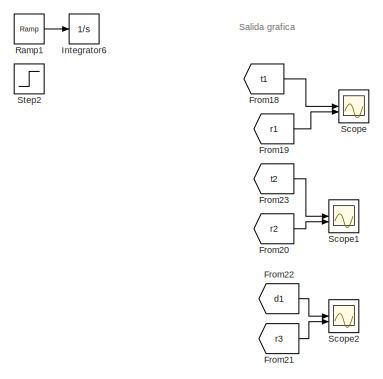
[diagram: root canvas - part 1/3, top left region]
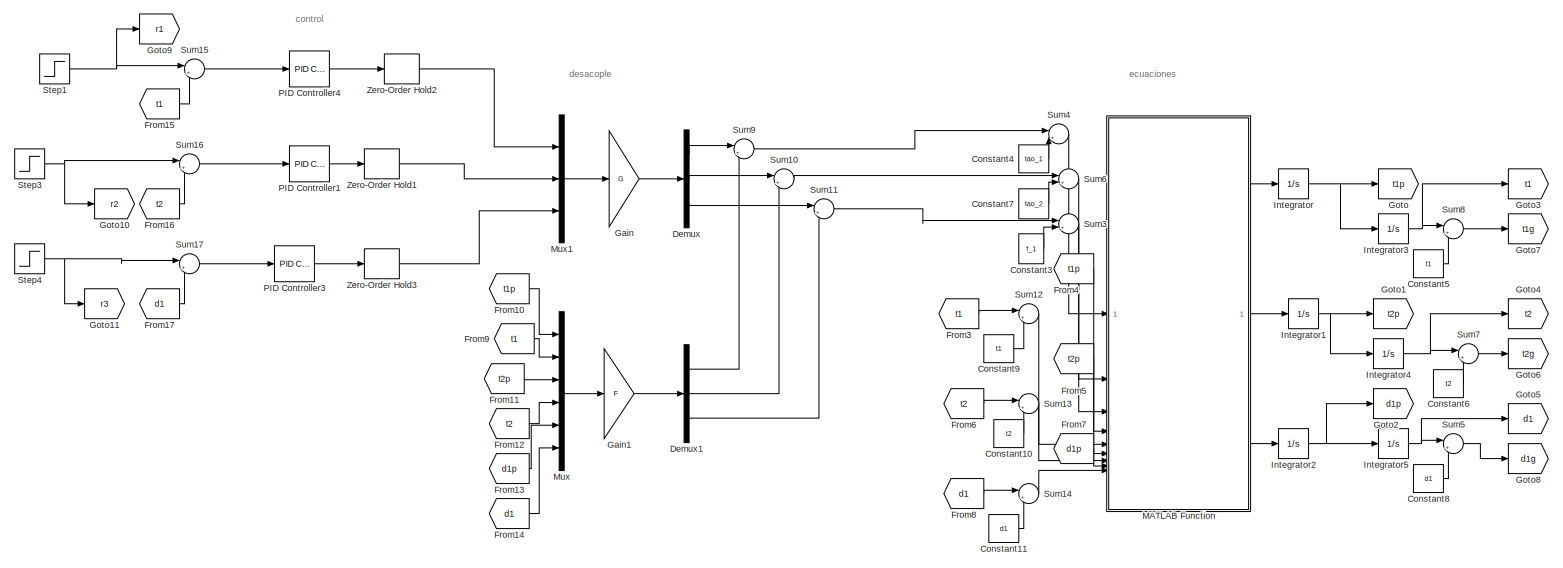
[diagram: root canvas - part 2/3, center side, full height]
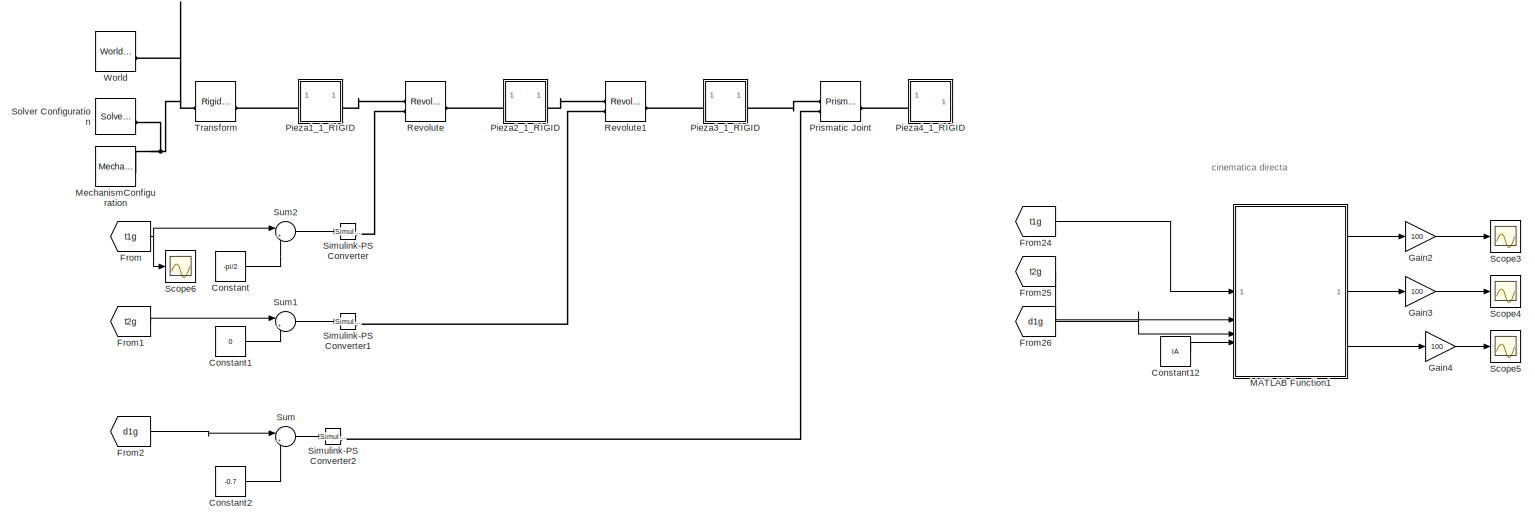
[diagram: root canvas - part 3/3, right side, full height]
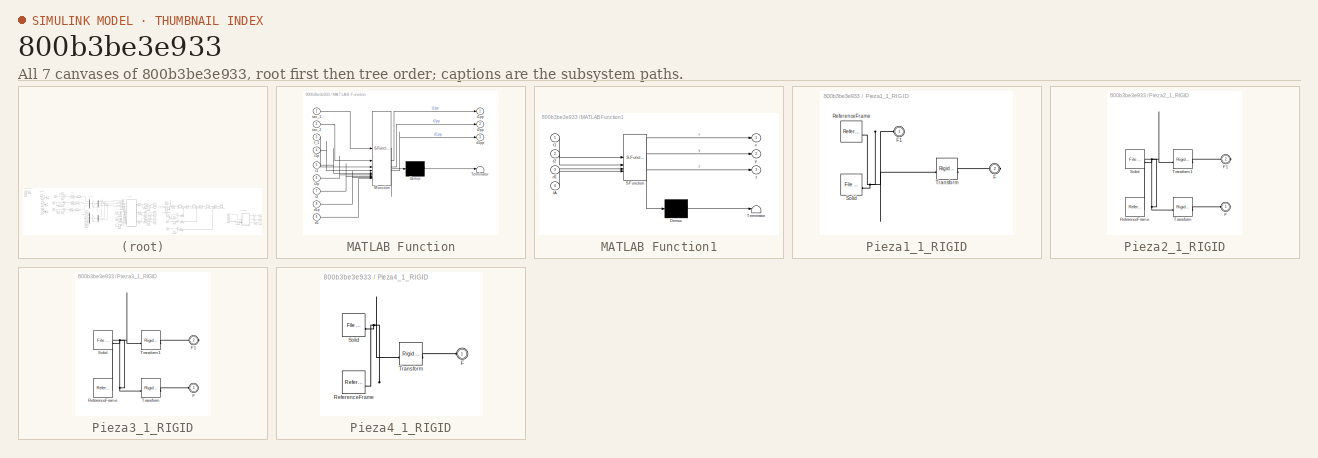
[diagram: thumbnail index - all 7 canvases of the model, root first then tree order]
MODEL slx_800b3be3e933
KIND model
CONFIG SolverName = VariableStepAuto
CONFIG StopTime = 2
WORKSPACE source: external: MATLAB File  (data not in archive)
BLOCK [Constant] Constant
  Value = -pi/2
BLOCK [Constant] Constant1
  Value = 0
BLOCK [Constant] Constant10
  Value = t2
BLOCK [Constant] Constant11
  Value = d1
BLOCK [Constant] Constant12
  Value = lA
BLOCK [Constant] Constant2
  Value = -0.7
BLOCK [Constant] Constant3
  Value = f_1
BLOCK [Constant] Constant4
  Value = tao_1
BLOCK [Constant] Constant5
  Value = t1
BLOCK [Constant] Constant6
  Value = t2
BLOCK [Constant] Constant7
  Value = tao_2
BLOCK [Constant] Constant8
  Value = d1
BLOCK [Constant] Constant9
  Value = t1
BLOCK [Demux] Demux
  Outputs = 3
BLOCK [Demux] Demux1
  Outputs = 3
BLOCK [From] From
  GotoTag = t1g
BLOCK [From] From1
  GotoTag = t2g
BLOCK [From] From10
  GotoTag = t1p
BLOCK [From] From11
  GotoTag = t2p
BLOCK [From] From12
  GotoTag = t2
BLOCK [From] From13
  GotoTag = d1p
BLOCK [From] From14
  GotoTag = d1
BLOCK [From] From15
  GotoTag = t1
BLOCK [From] From16
  GotoTag = t2
BLOCK [From] From17
  GotoTag = d1
BLOCK [From] From18
  GotoTag = t1
BLOCK [From] From19
  GotoTag = r1
BLOCK [From] From2
  GotoTag = d1g
BLOCK [From] From20
  GotoTag = r2
BLOCK [From] From21
  GotoTag = r3
BLOCK [From] From22
  GotoTag = d1
BLOCK [From] From23
  GotoTag = t2
BLOCK [From] From24
  GotoTag = t1g
BLOCK [From] From25
  GotoTag = t2g
BLOCK [From] From26
  GotoTag = d1g
BLOCK [From] From3
  GotoTag = t1
BLOCK [From] From4
  GotoTag = t1p
BLOCK [From] From5
  GotoTag = t2p
BLOCK [From] From6
  GotoTag = t2
BLOCK [From] From7
  GotoTag = d1p
BLOCK [From] From8
  GotoTag = d1
BLOCK [From] From9
  GotoTag = t1
BLOCK [Gain] Gain
  Gain = G
  Multiplication = Matrix(K*u)
BLOCK [Gain] Gain1
  Gain = F
  Multiplication = Matrix(K*u)
BLOCK [Gain] Gain2
  Gain = 100
BLOCK [Gain] Gain3
  Gain = 100
BLOCK [Gain] Gain4
  Gain = 100
BLOCK [Goto] Goto
  GotoTag = t1p
BLOCK [Goto] Goto1
  GotoTag = t2p
BLOCK [Goto] Goto10
  GotoTag = r2
BLOCK [Goto] Goto11
  GotoTag = r3
BLOCK [Goto] Goto2
  GotoTag = d1p
BLOCK [Goto] Goto3
  GotoTag = t1
BLOCK [Goto] Goto4
  GotoTag = t2
BLOCK [Goto] Goto5
  GotoTag = d1
BLOCK [Goto] Goto6
  GotoTag = t2g
BLOCK [Goto] Goto7
  GotoTag = t1g
BLOCK [Goto] Goto8
  GotoTag = d1g
BLOCK [Goto] Goto9
  GotoTag = r1
BLOCK [Integrator] Integrator
BLOCK [Integrator] Integrator1
BLOCK [Integrator] Integrator2
BLOCK [Integrator] Integrator3
BLOCK [Integrator] Integrator4
BLOCK [Integrator] Integrator5
BLOCK [Integrator] Integrator6
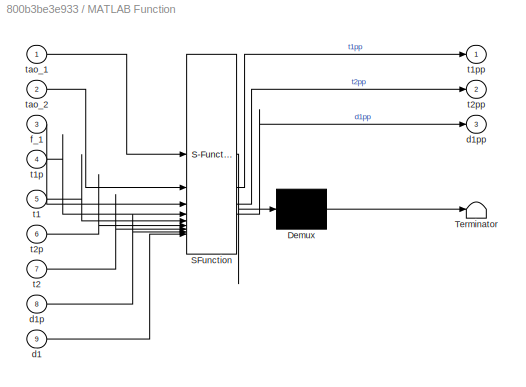
BLOCK [SubSystem] MATLAB Function
  ErrorFcn = Stateflow.Translate.translate
  PermitHierarchicalResolution = ExplicitOnly
  SFBlockType = MATLAB Function
  TreatAsAtomicUnit = on
BLOCK [Demux] MATLAB Function/ Demux 
  Outputs = 1
BLOCK [S-Function] MATLAB Function/ SFunction 
  EnableBusSupport = off
  FunctionName = sf_sfun
  PortCounts = [9 4]
  SFcnIsStateOwnerBlock = off
  SFunctionDeploymentMode = off
  Tag = Stateflow S-Function 2
BLOCK [Terminator] MATLAB Function/ Terminator 
BLOCK [Inport] MATLAB Function/d1
  Port = 9
BLOCK [Inport] MATLAB Function/d1p
  Port = 8
BLOCK [Outport] MATLAB Function/d1pp
  Port = 3
BLOCK [Inport] MATLAB Function/f_1
  Port = 3
BLOCK [Inport] MATLAB Function/t1
  Port = 5
BLOCK [Inport] MATLAB Function/t1p
  Port = 4
BLOCK [Outport] MATLAB Function/t1pp
BLOCK [Inport] MATLAB Function/t2
  Port = 7
BLOCK [Inport] MATLAB Function/t2p
  Port = 6
BLOCK [Outport] MATLAB Function/t2pp
  Port = 2
BLOCK [Inport] MATLAB Function/tao_1
BLOCK [Inport] MATLAB Function/tao_2
  Port = 2
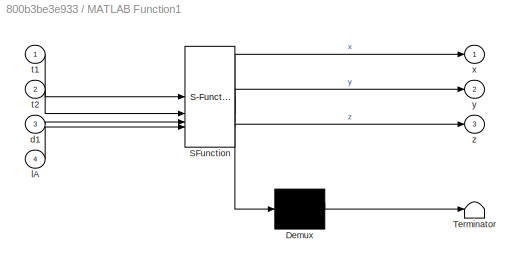
BLOCK [SubSystem] MATLAB Function1
  ErrorFcn = Stateflow.Translate.translate
  PermitHierarchicalResolution = ExplicitOnly
  SFBlockType = MATLAB Function
  TreatAsAtomicUnit = on
BLOCK [Demux] MATLAB Function1/ Demux 
  Outputs = 1
BLOCK [S-Function] MATLAB Function1/ SFunction 
  EnableBusSupport = off
  FunctionName = sf_sfun
  PortCounts = [4 4]
  SFcnIsStateOwnerBlock = off
  SFunctionDeploymentMode = off
  Tag = Stateflow S-Function 5
BLOCK [Terminator] MATLAB Function1/ Terminator 
BLOCK [Inport] MATLAB Function1/d1
  Port = 3
BLOCK [Inport] MATLAB Function1/lA
  Port = 4
BLOCK [Inport] MATLAB Function1/t1
BLOCK [Inport] MATLAB Function1/t2
  Port = 2
BLOCK [Outport] MATLAB Function1/x
BLOCK [Outport] MATLAB Function1/y
  Port = 2
BLOCK [Outport] MATLAB Function1/z
  Port = 3
BLOCK [Reference] MechanismConfiguration  REF=sm_lib/Utilities/Mechanism
Configuration
  SourceBlock = sm_lib/Utilities/Mechanism\nConfiguration
  SourceType = Mechanism\nConfiguration
BLOCK [Mux] Mux
  DisplayOption = bar
  Inputs = 6
BLOCK [Mux] Mux1
  DisplayOption = bar
  Inputs = 3
BLOCK [Reference] PID Controller1  REF=slpidlib/PID Controller
  LibrarySourceBlock = simulink/Continuous/PID Controller
  SourceBlock = slpidlib/PID Controller
  SourceType = PID 1dof
BLOCK [Reference] PID Controller3  REF=slpidlib/PID Controller
  LibrarySourceBlock = simulink/Continuous/PID Controller
  SourceBlock = slpidlib/PID Controller
  SourceType = PID 1dof
BLOCK [Reference] PID Controller4  REF=slpidlib/PID Controller
  LibrarySourceBlock = simulink/Continuous/PID Controller
  SourceBlock = slpidlib/PID Controller
  SourceType = PID 1dof
BLOCK [SubSystem] Pieza1_1_RIGID
BLOCK [PMIOPort] Pieza1_1_RIGID/F
  Port = 2
  Side = Right
BLOCK [PMIOPort] Pieza1_1_RIGID/F1
  Side = Left
BLOCK [Reference] Pieza1_1_RIGID/ReferenceFrame  REF=sm_lib/Frames and
Transforms/Reference
Frame
  SourceBlock = sm_lib/Frames and\nTransforms/Reference\nFrame
  SourceType = Reference\nFrame
BLOCK [Reference] Pieza1_1_RIGID/Solid  REF=sm_lib/Body Elements/File Solid
  SourceBlock = sm_lib/Body Elements/File Solid
  SourceType = File Solid
BLOCK [Reference] Pieza1_1_RIGID/Transform  REF=sm_lib/Frames and
Transforms/Rigid
Transform
  SourceBlock = sm_lib/Frames and\nTransforms/Rigid\nTransform
  SourceType = Rigid\nTransform
BLOCK [SubSystem] Pieza2_1_RIGID
BLOCK [PMIOPort] Pieza2_1_RIGID/F
  Side = Left
BLOCK [PMIOPort] Pieza2_1_RIGID/F1
  Port = 2
  Side = Right
BLOCK [Reference] Pieza2_1_RIGID/ReferenceFrame  REF=sm_lib/Frames and
Transforms/Reference
Frame
  SourceBlock = sm_lib/Frames and\nTransforms/Reference\nFrame
  SourceType = Reference\nFrame
BLOCK [Reference] Pieza2_1_RIGID/Solid  REF=sm_lib/Body Elements/File Solid
  SourceBlock = sm_lib/Body Elements/File Solid
  SourceType = File Solid
BLOCK [Reference] Pieza2_1_RIGID/Transform  REF=sm_lib/Frames and
Transforms/Rigid
Transform
  SourceBlock = sm_lib/Frames and\nTransforms/Rigid\nTransform
  SourceType = Rigid\nTransform
BLOCK [Reference] Pieza2_1_RIGID/Transform1  REF=sm_lib/Frames and
Transforms/Rigid
Transform
  SourceBlock = sm_lib/Frames and\nTransforms/Rigid\nTransform
  SourceType = Rigid\nTransform
BLOCK [SubSystem] Pieza3_1_RIGID
BLOCK [PMIOPort] Pieza3_1_RIGID/F
  Side = Left
BLOCK [PMIOPort] Pieza3_1_RIGID/F1
  Port = 2
  Side = Right
BLOCK [Reference] Pieza3_1_RIGID/ReferenceFrame  REF=sm_lib/Frames and
Transforms/Reference
Frame
  SourceBlock = sm_lib/Frames and\nTransforms/Reference\nFrame
  SourceType = Reference\nFrame
BLOCK [Reference] Pieza3_1_RIGID/Solid  REF=sm_lib/Body Elements/File Solid
  SourceBlock = sm_lib/Body Elements/File Solid
  SourceType = File Solid
BLOCK [Reference] Pieza3_1_RIGID/Transform  REF=sm_lib/Frames and
Transforms/Rigid
Transform
  SourceBlock = sm_lib/Frames and\nTransforms/Rigid\nTransform
  SourceType = Rigid\nTransform
BLOCK [Reference] Pieza3_1_RIGID/Transform1  REF=sm_lib/Frames and
Transforms/Rigid
Transform
  SourceBlock = sm_lib/Frames and\nTransforms/Rigid\nTransform
  SourceType = Rigid\nTransform
BLOCK [SubSystem] Pieza4_1_RIGID
BLOCK [PMIOPort] Pieza4_1_RIGID/F
  Side = Left
BLOCK [Reference] Pieza4_1_RIGID/ReferenceFrame  REF=sm_lib/Frames and
Transforms/Reference
Frame
  SourceBlock = sm_lib/Frames and\nTransforms/Reference\nFrame
  SourceType = Reference\nFrame
BLOCK [Reference] Pieza4_1_RIGID/Solid  REF=sm_lib/Body Elements/File Solid
  SourceBlock = sm_lib/Body Elements/File Solid
  SourceType = File Solid
BLOCK [Reference] Pieza4_1_RIGID/Transform  REF=sm_lib/Frames and
Transforms/Rigid
Transform
  SourceBlock = sm_lib/Frames and\nTransforms/Rigid\nTransform
  SourceType = Rigid\nTransform
BLOCK [Reference] Prismatic Joint  REF=sm_lib/Joints/Prismatic
Joint
  SourceBlock = sm_lib/Joints/Prismatic\nJoint
  SourceType = Prismatic\nJoint
BLOCK [Reference] Ramp1  REF=simulink/Sources/Ramp
  SourceBlock = simulink/Sources/Ramp
  SourceType = Ramp
BLOCK [Reference] Revolute  REF=sm_lib/Joints/Revolute Joint
  SourceBlock = sm_lib/Joints/Revolute Joint
  SourceType = Revolute Joint
BLOCK [Reference] Revolute1  REF=sm_lib/Joints/Revolute Joint
  SourceBlock = sm_lib/Joints/Revolute Joint
  SourceType = Revolute Joint
BLOCK [Scope] Scope
  ActiveDisplayYMaximum = 1.80516429232947E-5
  ActiveDisplayYMinimum = -2.0057381025882996E-6
  Floating = off
  GraphicalSettings = {"Style":{"BackgroundColor":[0.12941176470588237,0.12941176470588237,0.12941176470588237],"AxesColor":[0.07058823529411765,0.07058823529411765,0.07058823529411765],"LabelsColor":[0.8509803921568627,0.8509803921568627,0.8509803921568627],"PreserveColors":false,"Visible":[true,true],"LineStyle":["-","-"],"LineWidth":[1.5,1.5],"BarWidth":[0.9,0.9],"LineColor":["auto","auto"],"LineFaceAlpha":[1,1],"Li...<+2142ch>
  MultipleDisplayCache = [{"MaxYLimMag":1.80516429232947E-5,"MaxYLimReal":1.80516429232947E-5,"MinYLimMag":0,"MinYLimReal":-2.0057381025882996E-6,"PlotAsMagnitudePhase":false,"ShowGrid":true,"ShowLegend":false,"Title":"%<SignalLabel>","YLabel":""}]
  NumInputPorts = 2
  ScopeFrameLocation = window
  WasSavedAsWebScope = on
  WindowPosition = [665.000000,82.000000,560.000000,420.000000,]
BLOCK [Scope] Scope1
  ActiveDisplayYMaximum = 0.00011250002203052431
  ActiveDisplayYMinimum = -1.2500002447836031E-5
  DataLoggingVariableName = ScopeData1
  Floating = off
  GraphicalSettings = {"Style":{"BackgroundColor":[0.12941176470588237,0.12941176470588237,0.12941176470588237],"AxesColor":[0.07058823529411765,0.07058823529411765,0.07058823529411765],"LabelsColor":[0.8509803921568627,0.8509803921568627,0.8509803921568627],"PreserveColors":false,"Visible":[true,true],"LineStyle":["-","-"],"LineWidth":[1.5,1.5],"BarWidth":[0.9,0.9],"LineColor":["auto","auto"],"LineFaceAlpha":[1,1],"Li...<+2015ch>
  MultipleDisplayCache = [{"MaxYLimMag":0.00011250002203052431,"MaxYLimReal":0.00011250002203052431,"MinYLimMag":0,"MinYLimReal":-1.2500002447836031E-5,"PlotAsMagnitudePhase":false,"ShowGrid":true,"ShowLegend":false,"Title":"%<SignalLabel>","YLabel":""}]
  NumInputPorts = 2
  ScopeFrameLocation = window
  WasSavedAsWebScope = on
  WindowPosition = [488.000000,270.000000,560.000000,420.000000,]
BLOCK [Scope] Scope2
  ActiveDisplayYMaximum = 1.8033085504843022E-5
  ActiveDisplayYMinimum = -2.0116829282225588E-6
  DataLoggingVariableName = ScopeData2
  Floating = off
  GraphicalSettings = {"Style":{"BackgroundColor":[0.12941176470588237,0.12941176470588237,0.12941176470588237],"AxesColor":[0.07058823529411765,0.07058823529411765,0.07058823529411765],"LabelsColor":[0.8509803921568627,0.8509803921568627,0.8509803921568627],"PreserveColors":false,"Visible":[true,true],"LineStyle":["-","-"],"LineWidth":[1.5,1.5],"BarWidth":[0.9,0.9],"LineColor":["auto","auto"],"LineFaceAlpha":[1,1],"Li...<+2141ch>
  MultipleDisplayCache = [{"MaxYLimMag":1.8033085504843022E-5,"MaxYLimReal":1.8033085504843022E-5,"MinYLimMag":0,"MinYLimReal":-2.0116829282225588E-6,"PlotAsMagnitudePhase":false,"ShowGrid":true,"ShowLegend":false,"Title":"%<SignalLabel>","YLabel":""}]
  NumInputPorts = 2
  ScopeFrameLocation = window
  WasSavedAsWebScope = on
  WindowPosition = [488.000000,270.000000,560.000000,420.000000,]
BLOCK [Scope] Scope3
  ActiveDisplayYMaximum = 14.00133884150104
  ActiveDisplayYMinimum = 13.99985123983322
  DataLoggingVariableName = ScopeData3
  Floating = off
  GraphicalSettings = {"Style":{"BackgroundColor":[0.12941176470588237,0.12941176470588237,0.12941176470588237],"AxesColor":[0.07058823529411765,0.07058823529411765,0.07058823529411765],"LabelsColor":[0.8509803921568627,0.8509803921568627,0.8509803921568627],"PreserveColors":false,"Visible":[true],"LineStyle":["-"],"LineWidth":[1.5],"BarWidth":[0.9],"LineColor":["auto"],"LineFaceAlpha":[1],"LineEdgeAlpha":[1],"Marker":...<+2026ch>
  MultipleDisplayCache = [{"MaxYLimMag":14.00133884150104,"MaxYLimReal":14.00133884150104,"MinYLimMag":13.99985123983322,"MinYLimReal":13.99985123983322,"PlotAsMagnitudePhase":false,"ShowGrid":true,"ShowLegend":false,"Title":"%<SignalLabel>","YLabel":""}]
  NumInputPorts = 1
  ScopeFrameLocation = window
  WasSavedAsWebScope = on
  WindowPosition = [1.000000,1.000000,1366.000000,745.000000,]
BLOCK [Scope] Scope4
  ActiveDisplayYMaximum = 27.001389289157011
  ActiveDisplayYMinimum = 26.999845634538111
  DataLoggingVariableName = ScopeData4
  Floating = off
  GraphicalSettings = {"Style":{"BackgroundColor":[0.12941176470588237,0.12941176470588237,0.12941176470588237],"AxesColor":[0.07058823529411765,0.07058823529411765,0.07058823529411765],"LabelsColor":[0.8509803921568627,0.8509803921568627,0.8509803921568627],"PreserveColors":false,"Visible":[true],"LineStyle":["-"],"LineWidth":[1.5],"BarWidth":[0.9],"LineColor":["auto"],"LineFaceAlpha":[1],"LineEdgeAlpha":[1],"Marker":...<+2022ch>
  MultipleDisplayCache = [{"MaxYLimMag":27.001389289157011,"MaxYLimReal":27.001389289157011,"MinYLimMag":26.999845634538111,"MinYLimReal":26.999845634538111,"PlotAsMagnitudePhase":false,"ShowGrid":true,"ShowLegend":false,"Title":"%<SignalLabel>","YLabel":""}]
  NumInputPorts = 1
  ScopeFrameLocation = window
  WasSavedAsWebScope = on
  WindowPosition = [488.000000,270.000000,560.000000,420.000000,]
BLOCK [Scope] Scope5
  ActiveDisplayYMaximum = 98.0000413264987
  ActiveDisplayYMinimum = 97.999628061511757
  DataLoggingVariableName = ScopeData5
  Floating = off
  GraphicalSettings = {"Style":{"BackgroundColor":[0.12941176470588237,0.12941176470588237,0.12941176470588237],"AxesColor":[0.07058823529411765,0.07058823529411765,0.07058823529411765],"LabelsColor":[0.8509803921568627,0.8509803921568627,0.8509803921568627],"PreserveColors":false,"Visible":[true],"LineStyle":["-"],"LineWidth":[1.5],"BarWidth":[0.9],"LineColor":["auto"],"LineFaceAlpha":[1],"LineEdgeAlpha":[1],"Marker":...<+2022ch>
  MultipleDisplayCache = [{"MaxYLimMag":98.0000413264987,"MaxYLimReal":98.0000413264987,"MinYLimMag":97.999628061511757,"MinYLimReal":97.999628061511757,"PlotAsMagnitudePhase":false,"ShowGrid":true,"ShowLegend":false,"Title":"%<SignalLabel>","YLabel":""}]
  NumInputPorts = 1
  ScopeFrameLocation = window
  WasSavedAsWebScope = on
  WindowPosition = [488.000000,270.000000,560.000000,420.000000,]
BLOCK [Scope] Scope6
  ActiveDisplayYMaximum = 1
  ActiveDisplayYMinimum = -1
  DataLoggingVariableName = ScopeData6
  Floating = off
  GraphicalSettings = {"Style":{"BackgroundColor":[0.12941176470588237,0.12941176470588237,0.12941176470588237],"AxesColor":[0.07058823529411765,0.07058823529411765,0.07058823529411765],"LabelsColor":[0.8509803921568627,0.8509803921568627,0.8509803921568627],"PreserveColors":false,"Visible":[true],"LineStyle":["-"],"LineWidth":[1.5],"BarWidth":[0.9],"LineColor":["auto"],"LineFaceAlpha":[1],"LineEdgeAlpha":[1],"Marker":...<+1896ch>
  MultipleDisplayCache = [{"MaxYLimMag":1,"MaxYLimReal":1,"MinYLimMag":0,"MinYLimReal":-1,"PlotAsMagnitudePhase":false,"ShowGrid":true,"ShowLegend":false,"Title":"%<SignalLabel>","YLabel":""}]
  NumInputPorts = 1
  ScopeFrameLocation = window
  WasSavedAsWebScope = on
  WindowPosition = [403.000000,174.000000,560.000000,420.000000,]
BLOCK [Reference] Simulink-PS Converter  REF=nesl_utility/Simulink-PS
Converter
  SourceBlock = nesl_utility/Simulink-PS\nConverter
  SourceType = Simulink-PS\nConverter
BLOCK [Reference] Simulink-PS Converter1  REF=nesl_utility/Simulink-PS
Converter
  SourceBlock = nesl_utility/Simulink-PS\nConverter
  SourceType = Simulink-PS\nConverter
BLOCK [Reference] Simulink-PS Converter2  REF=nesl_utility/Simulink-PS
Converter
  SourceBlock = nesl_utility/Simulink-PS\nConverter
  SourceType = Simulink-PS\nConverter
BLOCK [Reference] Solver Configuration  REF=nesl_utility/Solver
Configuration
  SourceBlock = nesl_utility/Solver\nConfiguration
  SourceType = Solver\nConfiguration
BLOCK [Step] Step1
  FinalValue = 0.00001
  SampleTime = 0
BLOCK [Step] Step2
  FinalValue = 0.00001
  SampleTime = 0
BLOCK [Step] Step3
  FinalValue = 0.00001
  SampleTime = 0
BLOCK [Step] Step4
  FinalValue = 0.00001
  SampleTime = 0
BLOCK [Sum] Sum
  Inputs = |++
BLOCK [Sum] Sum1
  Inputs = |++
BLOCK [Sum] Sum10
  Inputs = |+-
BLOCK [Sum] Sum11
  Inputs = |+-
BLOCK [Sum] Sum12
  Inputs = |++
BLOCK [Sum] Sum13
  Inputs = |++
BLOCK [Sum] Sum14
  Inputs = |++
BLOCK [Sum] Sum15
  Inputs = |+-
BLOCK [Sum] Sum16
  Inputs = |+-
BLOCK [Sum] Sum17
  Inputs = |+-
BLOCK [Sum] Sum2
  Inputs = |++
BLOCK [Sum] Sum3
  Inputs = |++
BLOCK [Sum] Sum4
  Inputs = |++
BLOCK [Sum] Sum5
  Inputs = |++
BLOCK [Sum] Sum6
  Inputs = |++
BLOCK [Sum] Sum7
  Inputs = |++
BLOCK [Sum] Sum8
  Inputs = |++
BLOCK [Sum] Sum9
  Inputs = |+-
BLOCK [Reference] Transform  REF=sm_lib/Frames and
Transforms/Rigid
Transform
  SourceBlock = sm_lib/Frames and\nTransforms/Rigid\nTransform
  SourceType = Rigid\nTransform
BLOCK [Reference] World  REF=sm_lib/Frames and
Transforms/World Frame
  SourceBlock = sm_lib/Frames and\nTransforms/World Frame
  SourceType = World Frame
BLOCK [ZeroOrderHold] Zero-Order Hold1
  SampleTime = 0.0001
BLOCK [ZeroOrderHold] Zero-Order Hold2
  SampleTime = 0.0001
BLOCK [ZeroOrderHold] Zero-Order Hold3
  SampleTime = 0.0001
ANNOTATION (root): Salida grafica
ANNOTATION (root): cinematica directa
ANNOTATION (root): control
ANNOTATION (root): desacople
ANNOTATION (root): ecuaciones
LINE Constant10:1 -> Sum13:2
LINE Constant11:1 -> Sum14:2
LINE Constant12:1 -> MATLAB Function1:4
LINE Constant1:1 -> Sum1:2
LINE Constant2:1 -> Sum:2
LINE Constant3:1 -> Sum3:2
LINE Constant4:1 -> Sum4:2
LINE Constant5:1 -> Sum8:2
LINE Constant6:1 -> Sum7:2
LINE Constant7:1 -> Sum6:2
LINE Constant8:1 -> Sum5:2
LINE Constant9:1 -> Sum12:2
LINE Constant:1 -> Sum2:2
LINE Demux1:1 -> Sum9:2
LINE Demux1:2 -> Sum10:2
LINE Demux1:3 -> Sum11:2
LINE Demux:1 -> Sum9:1
LINE Demux:2 -> Sum10:1
LINE Demux:3 -> Sum11:1
LINE From10:1 -> Mux:1
LINE From11:1 -> Mux:3
LINE From12:1 -> Mux:4
LINE From13:1 -> Mux:5
LINE From14:1 -> Mux:6
LINE From15:1 -> Sum15:2
LINE From16:1 -> Sum16:2
LINE From17:1 -> Sum17:2
LINE From18:1 -> Scope:1
LINE From19:1 -> Scope:2
LINE From1:1 -> Sum1:1
LINE From20:1 -> Scope1:2
LINE From21:1 -> Scope2:2
LINE From22:1 -> Scope2:1
LINE From23:1 -> Scope1:1
LINE From24:1 -> MATLAB Function1:1
LINE From25:1 -> MATLAB Function1:2
LINE From26:1 -> MATLAB Function1:3
LINE From2:1 -> Sum:1
LINE From3:1 -> Sum12:1
LINE From4:1 -> MATLAB Function:4
LINE From5:1 -> MATLAB Function:6
LINE From6:1 -> Sum13:1
LINE From7:1 -> MATLAB Function:8
LINE From8:1 -> Sum14:1
LINE From9:1 -> Mux:2
NET From:1 -> Scope6:1, Sum2:1
LINE Gain1:1 -> Demux1:1
LINE Gain2:1 -> Scope3:1
LINE Gain3:1 -> Scope4:1
LINE Gain4:1 -> Scope5:1
LINE Gain:1 -> Demux:1
NET Integrator1:1 -> Goto1:1, Integrator4:1
NET Integrator2:1 -> Goto2:1, Integrator5:1
NET Integrator3:1 -> Goto3:1, Sum8:1
NET Integrator4:1 -> Goto4:1, Sum7:1
NET Integrator5:1 -> Goto5:1, Sum5:1
NET Integrator:1 -> Goto:1, Integrator3:1
LINE MATLAB Function1:1 -> Gain2:1
LINE MATLAB Function1:2 -> Gain3:1
LINE MATLAB Function1:3 -> Gain4:1
LINE MATLAB Function:1 -> Integrator:1
LINE MATLAB Function:2 -> Integrator1:1
LINE MATLAB Function:3 -> Integrator2:1
LINE Mux1:1 -> Gain:1
LINE Mux:1 -> Gain1:1
LINE PID Controller1:1 -> Zero-Order Hold1:1
LINE PID Controller3:1 -> Zero-Order Hold3:1
LINE PID Controller4:1 -> Zero-Order Hold2:1
LINE Ramp1:1 -> Integrator6:1
NET Step1:1 -> Goto9:1, Sum15:1
NET Step3:1 -> Goto10:1, Sum16:1
NET Step4:1 -> Goto11:1, Sum17:1
LINE Sum10:1 -> Sum6:1
LINE Sum11:1 -> Sum3:1
LINE Sum12:1 -> MATLAB Function:5
LINE Sum13:1 -> MATLAB Function:7
LINE Sum14:1 -> MATLAB Function:9
LINE Sum15:1 -> PID Controller4:1
LINE Sum16:1 -> PID Controller1:1
LINE Sum17:1 -> PID Controller3:1
LINE Sum1:1 -> Simulink-PS Converter1:1
LINE Sum2:1 -> Simulink-PS Converter:1
LINE Sum3:1 -> MATLAB Function:3
LINE Sum4:1 -> MATLAB Function:1
LINE Sum5:1 -> Goto8:1
LINE Sum6:1 -> MATLAB Function:2
LINE Sum7:1 -> Goto6:1
LINE Sum8:1 -> Goto7:1
LINE Sum9:1 -> Sum4:1
LINE Sum:1 -> Simulink-PS Converter2:1
LINE Zero-Order Hold1:1 -> Mux1:2
LINE Zero-Order Hold2:1 -> Mux1:1
LINE Zero-Order Hold3:1 -> Mux1:3
PNET net1: MechanismConfiguration:RConn1 -- Solver Configuration:RConn1 -- Transform:LConn1 -- World:RConn1
PNET net2: Pieza1_1_RIGID/F1:RConn1 -- Pieza1_1_RIGID/ReferenceFrame:RConn1 -- Pieza1_1_RIGID/Solid:RConn1 -- Pieza1_1_RIGID/Transform:LConn1
PLINE Pieza1_1_RIGID/F:RConn1 -- Pieza1_1_RIGID/Transform:RConn1
PLINE Pieza1_1_RIGID:LConn1 -- Transform:RConn1
PLINE Pieza1_1_RIGID:RConn1 -- Revolute:LConn1
PLINE Pieza2_1_RIGID/F1:RConn1 -- Pieza2_1_RIGID/Transform1:RConn1
PLINE Pieza2_1_RIGID/F:RConn1 -- Pieza2_1_RIGID/Transform:RConn1
PNET net3: Pieza2_1_RIGID/ReferenceFrame:RConn1 -- Pieza2_1_RIGID/Solid:RConn1 -- Pieza2_1_RIGID/Transform1:LConn1 -- Pieza2_1_RIGID/Transform:LConn1
PLINE Pieza2_1_RIGID:LConn1 -- Revolute:RConn1
PLINE Pieza2_1_RIGID:RConn1 -- Revolute1:LConn1
PLINE Pieza3_1_RIGID/F1:RConn1 -- Pieza3_1_RIGID/Transform1:RConn1
PLINE Pieza3_1_RIGID/F:RConn1 -- Pieza3_1_RIGID/Transform:RConn1
PNET net4: Pieza3_1_RIGID/ReferenceFrame:RConn1 -- Pieza3_1_RIGID/Solid:RConn1 -- Pieza3_1_RIGID/Transform1:LConn1 -- Pieza3_1_RIGID/Transform:LConn1
PLINE Pieza3_1_RIGID:LConn1 -- Revolute1:RConn1
PLINE Pieza3_1_RIGID:RConn1 -- Prismatic Joint:LConn1
PLINE Pieza4_1_RIGID/F:RConn1 -- Pieza4_1_RIGID/Transform:RConn1
PNET net5: Pieza4_1_RIGID/ReferenceFrame:RConn1 -- Pieza4_1_RIGID/Solid:RConn1 -- Pieza4_1_RIGID/Transform:LConn1
PLINE Pieza4_1_RIGID:LConn1 -- Prismatic Joint:RConn1
PLINE Prismatic Joint:LConn2 -- Simulink-PS Converter2:RConn1
PLINE Revolute1:LConn2 -- Simulink-PS Converter1:RConn1
PLINE Revolute:LConn2 -- Simulink-PS Converter:RConn1
note: NET lines group one-source signal fan-out (src -> all destinations, sorted); 1:1 wires keep LINE; PNET lines group multi-terminal physical nets as a canonical sorted terminal list (undirected conserving connections); 2-terminal nets keep the pairwise PLINE form
CHART MATLAB Function states=1 transitions=1
  STATE_LABEL 'eML_blk_kernel()'
  STATE_LABEL 'SCRIPT:\nfunction [t1pp, t2pp, d1pp] = fcn(tao_1,tao_2,f_1,t1p,t1,t2p,t2,d1p, d1)\ng = 9.81;\nmA = 107.8022935;\nlA = 0.95;\nIA = 3.05060781;\n\nmB = 87.45339271;\nlB = 0.01798703;\nIB = 0.78614149;\n\nmC = 7.90225368;\nIC = 0.43524317;\n\n\nt1pp = (tao_1 + t1p*(mC*t2p*sin(2*t2)*d1^2 - 2*d1p*mC*d1*cos(t2)^2 + mB*t2p*sin(2*t2)*lB^2))/(mC*d1^2*cos(t2)^2 + mB*lB^2*cos(t2)^2 + IA + IB + IC);\nt2pp = (tao_2 - t2p*(cos...<+171ch>'
CHART MATLAB Function1 states=1 transitions=1
  STATE_LABEL 'eML_blk_kernel()'
  STATE_LABEL 'SCRIPT:\nfunction [x,y,z] = fcn(t1,t2,d1, lA)\n\nx = d1 * sin(t2) * sin(t1);\n\ny = d1 * sin(t2) * cos(t1);\n\nz = lA + d1 * cos(t2);'
CHART  states=0 transitions=0
CHART  states=0 transitions=0
